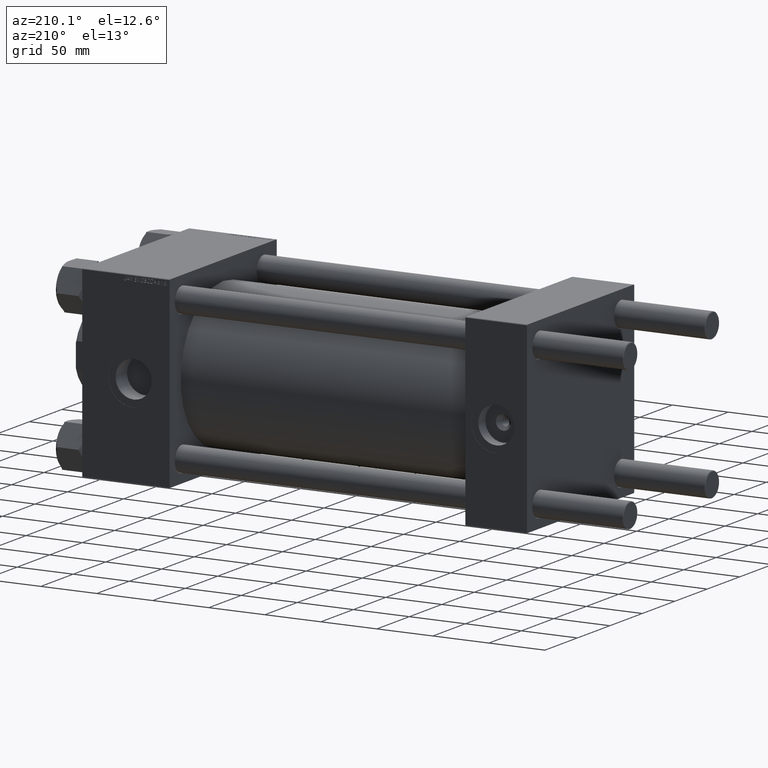
[diagram: clean part render]
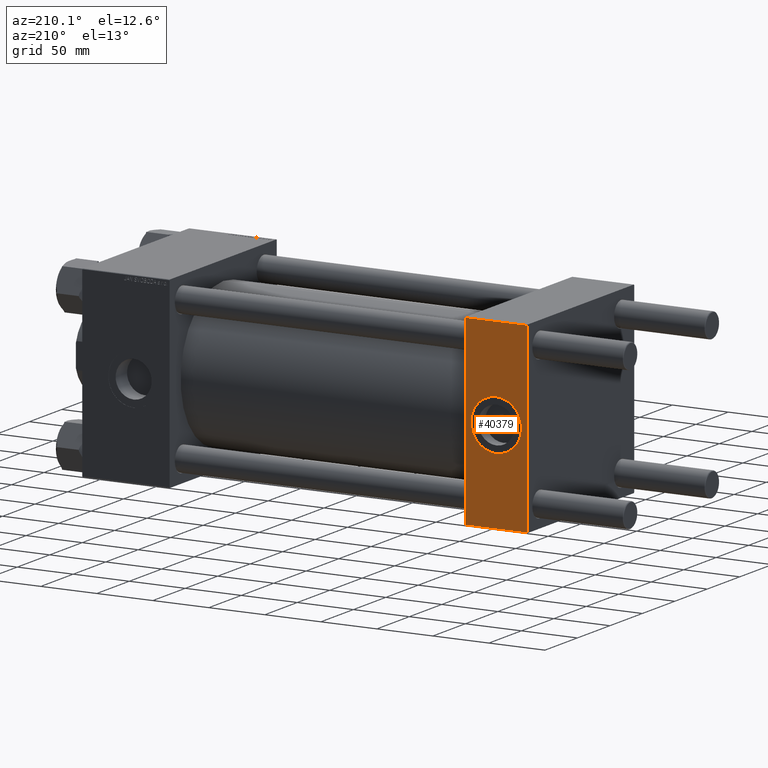
[diagram: same view with one face highlighted and labeled with its STEP entity id]
A machine part, auxiliary view. The second image highlights one B-rep face of the part: STEP entity #40379.
In plain terms, the highlighted planar face has unit normal (0, 1, 0).
Its self-contained STEP definition (entity closure, byte-faithful):
#674 = VERTEX_POINT ( 'NONE', #41805 ) ;
#2044 = CARTESIAN_POINT ( 'NONE',  ( 55.00000000000000000, 82.50000000000002842, 82.00000000000005684 ) ) ;
#3255 = EDGE_CURVE ( 'NONE', #28954, #674, #18874, .T. ) ;
#3276 = CARTESIAN_POINT ( 'NONE',  ( 27.50000000000000000, 82.50000000000002842, 0.000000000000000000 ) ) ;
#6725 = CARTESIAN_POINT ( 'NONE',  ( 27.50000000000000000, 82.50000000000002842, 0.000000000000000000 ) ) ;
#6962 = EDGE_LOOP ( 'NONE', ( #48140, #40119 ) ) ;
#7480 = DIRECTION ( 'NONE',  ( 0.000000000000000000, 0.000000000000000000, 1.000000000000000000 ) ) ;
#8506 = DIRECTION ( 'NONE',  ( 0.000000000000000000, 0.000000000000000000, -1.000000000000000000 ) ) ;
#8635 = DIRECTION ( 'NONE',  ( -1.000000000000000000, 0.000000000000000000, 0.000000000000000000 ) ) ;
#9211 = DIRECTION ( 'NONE',  ( 1.000000000000000000, 0.000000000000000000, 0.000000000000000000 ) ) ;
#9372 = ORIENTED_EDGE ( 'NONE', *, *, #12306, .T. ) ;
#12296 = DIRECTION ( 'NONE',  ( -0.000000000000000000, 1.000000000000000000, 0.000000000000000000 ) ) ;
#12306 = EDGE_CURVE ( 'NONE', #34923, #23337, #40103, .T. ) ;
#12549 = CARTESIAN_POINT ( 'NONE',  ( 55.00000000000000000, 82.50000000000002842, 82.50000000000002842 ) ) ;
#13252 = CIRCLE ( 'NONE', #28740, 22.50000000000000711 ) ;
#15006 = DIRECTION ( 'NONE',  ( 0.000000000000000000, 0.000000000000000000, 1.000000000000000000 ) ) ;
#15990 = CARTESIAN_POINT ( 'NONE',  ( 55.00000000000000000, 82.50000000000002842, -82.00000000000000000 ) ) ;
#16046 = ORIENTED_EDGE ( 'NONE', *, *, #41448, .T. ) ;
#16127 = FACE_OUTER_BOUND ( 'NONE', #39261, .T. ) ;
#18874 = CIRCLE ( 'NONE', #23786, 22.50000000000000711 ) ;
#19196 = DIRECTION ( 'NONE',  ( 0.000000000000000000, 1.000000000000000000, 0.000000000000000000 ) ) ;
#22144 = DIRECTION ( 'NONE',  ( 0.000000000000000000, 1.000000000000000000, 0.000000000000000000 ) ) ;
#22246 = CARTESIAN_POINT ( 'NONE',  ( 55.00000000000000000, 82.50000000000002842, 82.00000000000005684 ) ) ;
#22802 = CARTESIAN_POINT ( 'NONE',  ( 0.000000000000000000, 82.50000000000002842, 82.00000000000005684 ) ) ;
#23337 = VERTEX_POINT ( 'NONE', #22246 ) ;
#23786 = AXIS2_PLACEMENT_3D ( 'NONE', #3276, #22144, #15006 ) ;
#24031 = FACE_BOUND ( 'NONE', #6962, .T. ) ;
#26007 = VECTOR ( 'NONE', #9211, 1000.000000000000000 ) ;
#27047 = VERTEX_POINT ( 'NONE', #39863 ) ;
#27880 = EDGE_CURVE ( 'NONE', #674, #28954, #13252, .T. ) ;
#28119 = DIRECTION ( 'NONE',  ( 0.000000000000000000, -0.000000000000000000, 1.000000000000000000 ) ) ;
#28690 = VERTEX_POINT ( 'NONE', #15990 ) ;
#28740 = AXIS2_PLACEMENT_3D ( 'NONE', #6725, #19196, #7480 ) ;
#28954 = VERTEX_POINT ( 'NONE', #29628 ) ;
#29628 = CARTESIAN_POINT ( 'NONE',  ( 27.50000000000000355, 82.50000000000002842, -22.50000000000000711 ) ) ;
#29816 = EDGE_CURVE ( 'NONE', #28690, #27047, #36191, .T. ) ;
#30961 = LINE ( 'NONE', #50355, #50143 ) ;
#31961 = PLANE ( 'NONE',  #42754 ) ;
#32478 = ORIENTED_EDGE ( 'NONE', *, *, #37246, .F. ) ;
#32559 = DIRECTION ( 'NONE',  ( 0.000000000000000000, 0.000000000000000000, -1.000000000000000000 ) ) ;
#34923 = VERTEX_POINT ( 'NONE', #22802 ) ;
#35616 = VECTOR ( 'NONE', #32559, 1000.000000000000000 ) ;
#35650 = LINE ( 'NONE', #44540, #35616 ) ;
#36191 = LINE ( 'NONE', #44337, #48342 ) ;
#37246 = EDGE_CURVE ( 'NONE', #34923, #27047, #35650, .T. ) ;
#39261 = EDGE_LOOP ( 'NONE', ( #16046, #42397, #32478, #9372 ) ) ;
#39863 = CARTESIAN_POINT ( 'NONE',  ( 0.000000000000000000, 82.50000000000002842, -82.00000000000000000 ) ) ;
#40103 = LINE ( 'NONE', #2044, #26007 ) ;
#40119 = ORIENTED_EDGE ( 'NONE', *, *, #3255, .F. ) ;
#40379 = ADVANCED_FACE ( 'NONE', ( #24031, #16127 ), #31961, .T. ) ;
#41448 = EDGE_CURVE ( 'NONE', #23337, #28690, #30961, .T. ) ;
#41805 = CARTESIAN_POINT ( 'NONE',  ( 27.50000000000000000, 82.50000000000002842, 22.50000000000000711 ) ) ;
#42397 = ORIENTED_EDGE ( 'NONE', *, *, #29816, .T. ) ;
#42754 = AXIS2_PLACEMENT_3D ( 'NONE', #12549, #12296, #28119 ) ;
#44337 = CARTESIAN_POINT ( 'NONE',  ( 55.00000000000000000, 82.50000000000002842, -82.00000000000000000 ) ) ;
#44540 = CARTESIAN_POINT ( 'NONE',  ( 0.000000000000000000, 82.50000000000002842, 82.50000000000002842 ) ) ;
#48140 = ORIENTED_EDGE ( 'NONE', *, *, #27880, .F. ) ;
#48342 = VECTOR ( 'NONE', #8635, 1000.000000000000000 ) ;
#50143 = VECTOR ( 'NONE', #8506, 1000.000000000000000 ) ;
#50355 = CARTESIAN_POINT ( 'NONE',  ( 55.00000000000000000, 82.50000000000002842, 82.50000000000002842 ) ) ;